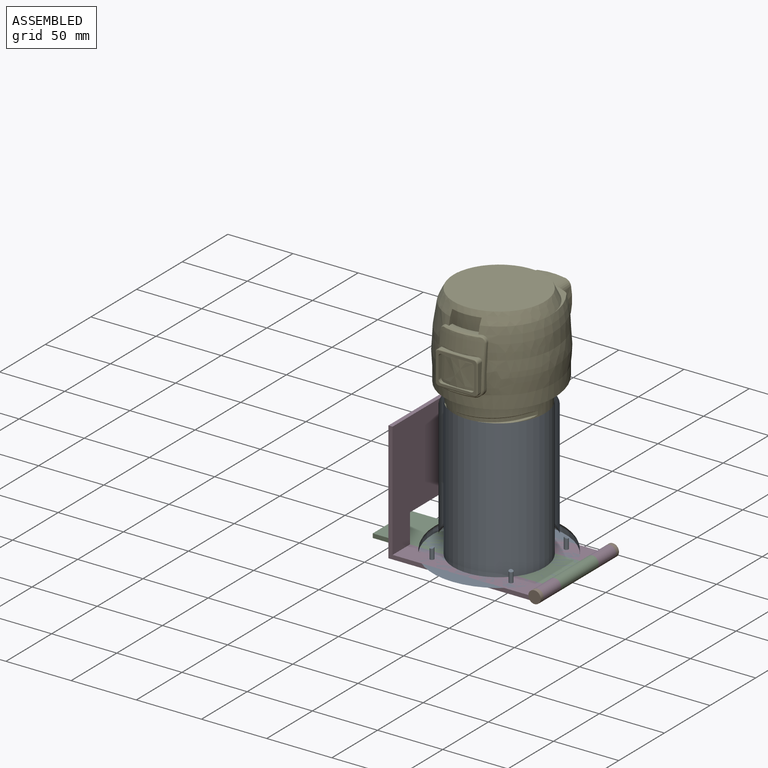
[diagram: assembled view]
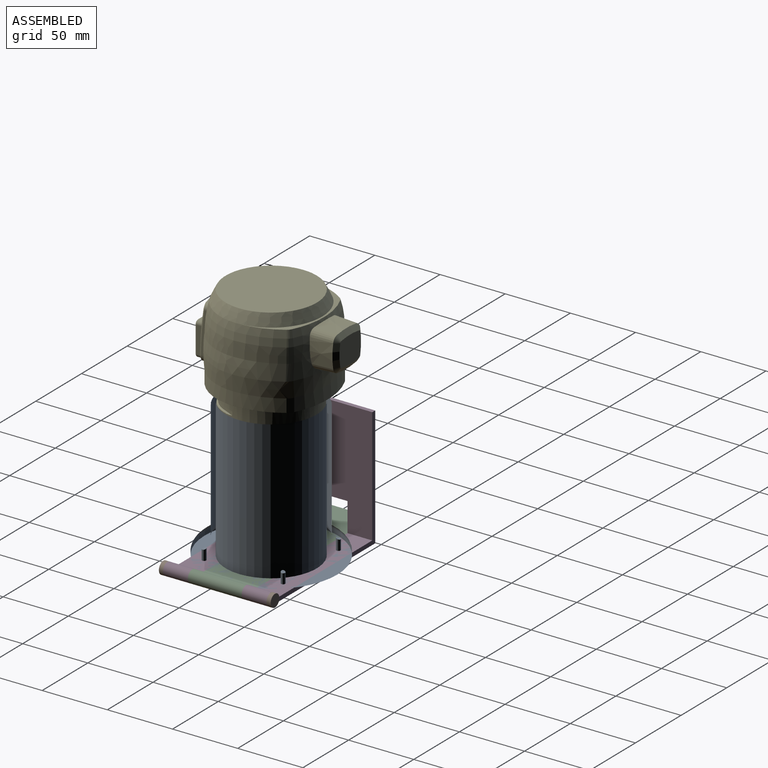
[diagram: assembled view, second angle]
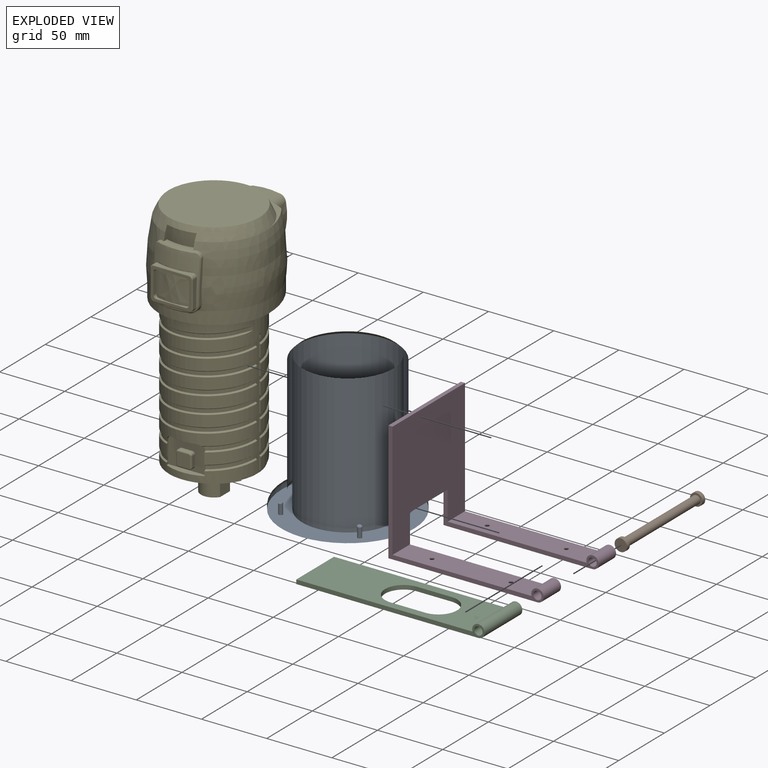
[diagram: exploded view]
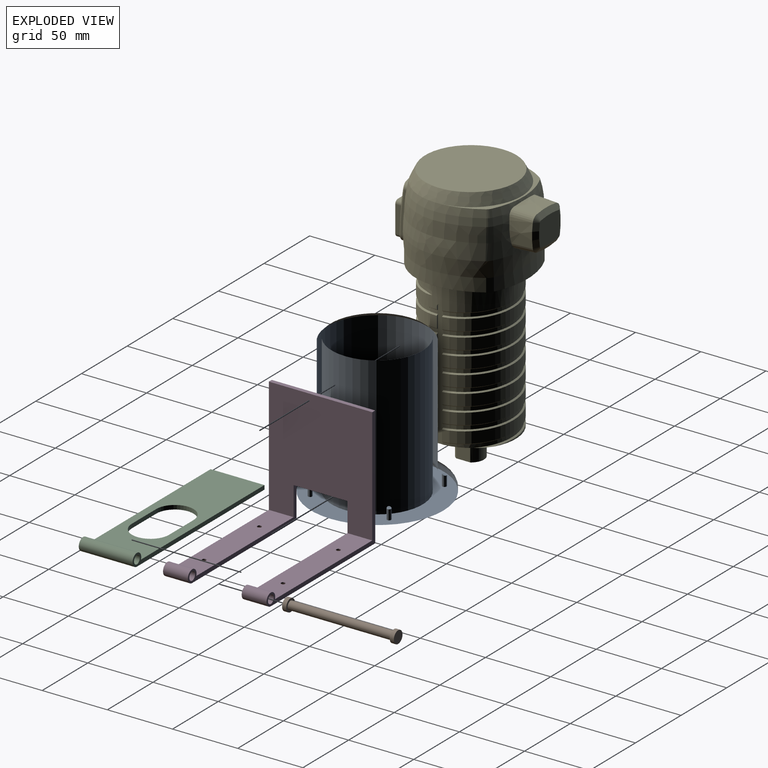
[diagram: exploded view, second angle]
ASSEMBLY  parts=5 mates=3
PART A: 17 faces, bbox 110x110x107.7 mm
  f0: torus R=44.45mm, axis (0,0,-1), area 8.3mm2, adj f1
  f1: cylinder r=1.59mm len=8.47mm, axis (0,0,-1), area 79.1mm2, adj f0,f2
  f2: plane 101.6x101.6mm, normal (0,0,1), area 4243.7mm2, adj f1,f3,f4,f5,f6,f7
  f3: cylinder r=1.59mm len=8.47mm, axis (0,0,-1), area 79.1mm2, adj f2,f8
  f4: cylinder r=1.59mm len=8.47mm, axis (0,0,-1), area 79.1mm2, adj f2,f9
  f5: cylinder r=1.59mm len=8.47mm, axis (0,0,-1), area 79.1mm2, adj f2,f10
  f6: cylinder r=34.92mm len=106.68mm, axis (0,0,-1), area 23409.9mm2, adj f2,f11
  f7: cylinder r=50.8mm len=101.6mm, axis (0,0,-1), area 810.7mm2, adj f2,f12
  f8: torus R=44.45mm, axis (0,0,-1), area 8.3mm2, adj f3
  f9: torus R=44.45mm, axis (0,0,-1), area 8.3mm2, adj f4
  f10: torus R=44.45mm, axis (0,0,-1), area 8.3mm2, adj f5
  f11: plane 71.12x71.12mm, normal (0,0,-1), area 140.6mm2, adj f6,f13
  f12: torus R=45.72mm, axis (0,0,-1), area 2454.4mm2, adj f7,f14
  f13: cone r=35.56mm half-angle=45deg, axis (0,0,-1), area 831.2mm2, adj f11,f15
  f14: plane 91.44x91.44mm, normal (0,0,-1), area 359.8mm2, adj f12,f16
  f15: cylinder r=38.1mm len=90.17mm, axis (0,0,-1), area 21585.7mm2, adj f13,f16
  f16: torus R=44.45mm, axis (0,0,-1), area 2532.4mm2, adj f14,f15
PART B: 7 faces, bbox 9.5x85.7x9.5 mm
  f0: cylinder r=3.17mm len=79.38mm, axis (0,1,0), area 1583.5mm2, adj f3,f6
  f1: cylinder r=4.76mm len=9.53mm, axis (0,1,0), area 95mm2, adj f2,f3
  f2: plane 9.53x9.53mm, normal (0,-1,0), area 71.3mm2, adj f1
  f3: plane 9.53x9.53mm, normal (0,1,0), area 39.6mm2, adj f0,f1
  f4: cylinder r=4.76mm len=9.53mm, axis (0,-1,0), area 95mm2, adj f5,f6
  f5: plane 9.53x9.53mm, normal (0,1,0), area 71.3mm2, adj f4
  f6: plane 9.53x9.53mm, normal (0,-1,0), area 39.6mm2, adj f0,f4
PART C: 11 faces, bbox 144.5x41.3x9.5 mm
  f0: plane 139.7x41.28mm, normal (0,0,-1), area 4362.9mm2, adj f1,f4,f5,f6,f7,f8,f9,f10
  f1: cylinder r=4.76mm len=41.28mm, axis (0,1,0), area 993.1mm2, adj f0,f2,f5,f6
  f2: plane 135.21x41.28mm, normal (0,0,1), area 4177.6mm2, adj f1,f4,f5,f6,f7,f8,f9,f10
  f3: cylinder r=3.17mm len=41.28mm, axis (0,1,0), area 823.4mm2, adj f5,f6
  f4: plane 41.28x3.18mm, normal (-1,0,0), area 131mm2, adj f0,f2,f5,f6
  f5: plane 144.46x9.53mm, normal (0,-1,0), area 472.7mm2, adj f0,f1,f2,f3,f4
  f6: plane 144.46x9.53mm, normal (0,1,0), area 472.7mm2, adj f0,f1,f2,f3,f4
  f7: cylinder r=14.29mm len=28.58mm, axis (0,0,1), area 142.5mm2, adj f0,f2,f8,f9
  f8: plane 26.66x3.18mm, normal (0,-1,0), area 84.7mm2, adj f0,f2,f7,f10
  f9: plane 26.66x3.18mm, normal (0,1,0), area 84.7mm2, adj f0,f2,f7,f10
  f10: cylinder r=14.29mm len=28.58mm, axis (0,0,1), area 142.5mm2, adj f0,f2,f8,f9
PART D: 24 faces, bbox 119.1x79.4x92.1 mm
  f0: plane 114.3x19.05mm, normal (0,0,-1), area 2070.4mm2, adj f1,f4,f12,f14,f20,f21
  f1: cylinder r=4.76mm len=19.05mm, axis (0,1,0), area 458.4mm2, adj f0,f2,f12,f14
  f2: plane 106.64x19.05mm, normal (0,0,1), area 2015.6mm2, adj f1,f8,f12,f14,f18,f19
  f3: cylinder r=3.17mm len=19.05mm, axis (0,1,0), area 380mm2, adj f12,f14
  f4: plane 92.08x79.38mm, normal (-1,0,0), area 6260.1mm2, adj f0,f5,f9,f11,f12,f13,f14,f15
  f5: plane 114.3x19.05mm, normal (0,0,-1), area 2070.4mm2, adj f4,f6,f11,f13,f22,f23
  f6: cylinder r=4.76mm len=19.05mm, axis (0,1,0), area 458.4mm2, adj f5,f7,f11,f13
  f7: plane 106.64x19.05mm, normal (0,0,1), area 2015.6mm2, adj f6,f8,f11,f13,f16,f17
  f8: plane 88.9x79.38mm, normal (1,0,0), area 6139.1mm2, adj f2,f7,f9,f11,f12,f13,f14,f15
  f9: plane 79.38x3.18mm, normal (0,0,1), area 252mm2, adj f4,f8,f11,f12
  f10: cylinder r=3.17mm len=19.05mm, axis (0,1,0), area 380mm2, adj f11,f13
  f11: plane 119.06x92.08mm, normal (0,-1,0), area 674.4mm2, adj f4,f5,f6,f7,f8,f9,f10
  f12: plane 119.06x92.08mm, normal (0,1,0), area 674.4mm2, adj f0,f1,f2,f3,f4,f8,f9
  f13: plane 119.06x25.4mm, normal (0,1,0), area 462.7mm2, adj f4,f5,f6,f7,f8,f10,f15
  f14: plane 119.06x25.4mm, normal (0,-1,0), area 462.7mm2, adj f0,f1,f2,f3,f4,f8,f15
  f15: plane 41.28x3.18mm, normal (0,0,-1), area 131mm2, adj f4,f8,f13,f14
  f16: cylinder r=1.59mm len=3.18mm, axis (0,0,-1), area 6.3mm2, adj f7,f23
  f17: cylinder r=1.59mm len=3.18mm, axis (0,0,-1), area 6.3mm2, adj f7,f22
  f18: cylinder r=1.59mm len=3.18mm, axis (0,0,-1), area 6.3mm2, adj f2,f21
  f19: cylinder r=1.59mm len=3.18mm, axis (0,0,-1), area 6.3mm2, adj f2,f20
  f20: cone r=1.59mm half-angle=45deg, axis (0,0,-1), area 64.5mm2, adj f0,f19
  f21: cone r=1.59mm half-angle=45deg, axis (0,0,-1), area 64.5mm2, adj f0,f18
  f22: cone r=1.59mm half-angle=45deg, axis (0,0,-1), area 64.5mm2, adj f5,f17
  f23: cone r=1.59mm half-angle=45deg, axis (0,0,-1), area 64.5mm2, adj f5,f16
PART E: 205 faces, bbox 86.1x107.7x199.2 mm
  f0: plane 28.8x21.4mm, normal (0,-1,0), area 466.4mm2, adj f1,f11,f12,f13,f14,f15,f16,f17
  f1: cylinder r=1.98mm len=2.81mm, axis (0,1,0), area 8.8mm2, adj f0,f2,f11,f17
  f2: torus R=0.79mm, axis (0,-1,0), area 4.6mm2, adj f1,f3,f9,f10
  f3: plane 9.62x9.62mm, normal (0,-1,0), area 92mm2, adj f2,f4,f5,f6,f7,f8,f9,f10
  f4: torus R=0.79mm, axis (0,-1,0), area 4.6mm2, adj f3,f5,f10,f16
  f5: cylinder r=1.19mm len=8.03mm, axis (0,0,1), area 15mm2, adj f3,f4,f6,f15
  f6: torus R=0.79mm, axis (0,-1,0), area 4.6mm2, adj f3,f5,f7,f14
  f7: cylinder r=1.19mm len=8.03mm, axis (1,0,0), area 15mm2, adj f3,f6,f8,f13
  f8: torus R=0.79mm, axis (0,-1,0), area 4.6mm2, adj f3,f7,f9,f12
  f9: cylinder r=1.19mm len=8.03mm, axis (0,0,-1), area 15mm2, adj f2,f3,f8,f11
  f10: cylinder r=1.19mm len=8.03mm, axis (-1,0,0), area 15mm2, adj f2,f3,f4,f17
  f11: plane 8.03x2.81mm, normal (1,0,0), area 22.6mm2, adj f0,f1,f9,f12
  f12: cylinder r=1.98mm len=2.81mm, axis (0,1,0), area 8.8mm2, adj f0,f8,f11,f13
  f13: plane 8.03x2.81mm, normal (0,0,1), area 22.6mm2, adj f0,f7,f12,f14
  f14: cylinder r=1.98mm len=2.81mm, axis (0,1,0), area 8.8mm2, adj f0,f6,f13,f15
  f15: plane 8.03x2.81mm, normal (-1,0,0), area 22.6mm2, adj f0,f5,f14,f16
  f16: cylinder r=1.98mm len=2.81mm, axis (0,1,0), area 8.8mm2, adj f0,f4,f15,f17
  f17: plane 8.03x2.81mm, normal (0,0,-1), area 22.6mm2, adj f0,f1,f10,f16
  f18: cylinder r=4.66mm len=4.66mm, axis (0,1,0), area 0.7mm2, adj f0,f19,f173,f177
  f19: plane 29x21.6mm, normal (0,-1,0), area 9.7mm2, adj f18,f20,f168,f169,f170,f171,f172,f173
  f20: plane 29x5mm, normal (0,0,1), area 114.7mm2, adj f19,f21,f168,f172
  f21: cylinder r=34.5mm len=68.88mm, axis (0,0,-1), area 692.3mm2, adj f20,f22,f150,f151,f152,f165,f166,f167
  f22: plane 95.2x1.24mm, normal (0,1,0), area 88mm2, adj f21,f23,f115,f116,f117,f118,f119,f120
  f23: cylinder r=34.5mm len=69mm, axis (0,0,-1), area 3893mm2, adj f22,f24,f58,f59,f60,f61,f62,f63
  f24: cylinder r=2mm len=4mm, axis (-1,0,0), area 2mm2, adj f23,f25,f26,f27,f56,f57,f58,f165
  f25: bspline ~66.65x66.64mm, area 521.1mm2, adj f24,f26,f58,f60,f62,f63
  f26: bspline ~69.8x43.83mm, area 145.2mm2, adj f24,f25,f27,f63
  f27: cylinder r=34.5mm len=68.88mm, axis (0,0,-1), area 904mm2, adj f24,f26,f28,f56,f63
  f28: bspline ~69.8x43.83mm, area 145.1mm2, adj f27,f29,f56,f63
  f29: bspline ~67.47x42.37mm, area 272.1mm2, adj f28,f30,f56,f63
  f30: bspline ~69.8x43.83mm, area 145.1mm2, adj f29,f31,f56,f63
  f31: cylinder r=34.5mm len=68.88mm, axis (0,0,-1), area 904mm2, adj f30,f32,f56,f63
  f32: bspline ~69.8x43.83mm, area 145.1mm2, adj f31,f33,f56,f63
  f33: bspline ~67.47x42.37mm, area 272.1mm2, adj f32,f34,f56,f63
  f34: bspline ~69.8x43.83mm, area 145.1mm2, adj f33,f35,f56,f63
  f35: cylinder r=34.5mm len=68.88mm, axis (0,0,-1), area 904mm2, adj f34,f36,f56,f63
  f36: bspline ~69.8x43.83mm, area 145.1mm2, adj f35,f37,f56,f63
  f37: bspline ~67.47x42.37mm, area 272.1mm2, adj f36,f38,f56,f63
  f38: bspline ~69.8x43.83mm, area 145.1mm2, adj f37,f39,f56,f63
  f39: cylinder r=34.5mm len=68.88mm, axis (0,0,-1), area 904mm2, adj f38,f40,f56,f63
  f40: bspline ~69.8x43.83mm, area 145.1mm2, adj f39,f41,f56,f63
  f41: bspline ~67.47x42.37mm, area 272.1mm2, adj f40,f42,f56,f63
  f42: bspline ~69.8x43.83mm, area 145.1mm2, adj f41,f43,f56,f63
  f43: cylinder r=34.5mm len=68.88mm, axis (0,0,-1), area 904mm2, adj f42,f44,f56,f63
  f44: bspline ~69.8x43.83mm, area 145.1mm2, adj f43,f45,f56,f63
  f45: bspline ~67.47x42.37mm, area 272.1mm2, adj f44,f46,f56,f63
  f46: bspline ~69.8x43.83mm, area 145.1mm2, adj f45,f47,f56,f63
  f47: cylinder r=34.5mm len=68.88mm, axis (0,0,-1), area 904mm2, adj f46,f48,f56,f63
  f48: bspline ~69.8x43.83mm, area 145.1mm2, adj f47,f49,f56,f63
  f49: bspline ~67.47x42.37mm, area 272.1mm2, adj f48,f50,f56,f63
  f50: bspline ~69.8x43.83mm, area 145.1mm2, adj f49,f51,f56,f63
  f51: cylinder r=34.5mm len=68.88mm, axis (0,0,-1), area 904mm2, adj f50,f52,f56,f63
  f52: bspline ~69.8x43.83mm, area 145.1mm2, adj f51,f53,f56,f63
  f53: bspline ~67.47x42.37mm, area 260mm2, adj f52,f54,f56,f63,f152
  f54: bspline ~63.16x43.83mm, area 107mm2, adj f53,f55,f56,f152
  f55: cylinder r=34.5mm len=51.63mm, axis (0,0,-1), area 147.7mm2, adj f54,f56,f152
  f56: plane 95.2x1.24mm, normal (0,-1,0), area 89.9mm2, adj f24,f27,f28,f29,f30,f31,f32,f33
  f57: plane 97.2x4mm, normal (-1,0,0), area 387.1mm2, adj f24,f56,f152,f165
  f58: bspline ~66.17x37.91mm, area 127.2mm2, adj f23,f24,f25,f59
  f59: plane 8.49x3.73mm, normal (0.53,-0.25,0.81), area 8.3mm2, adj f23,f58,f60
  f60: plane 8.01x3.73mm, normal (0.91,-0.42,0), area 23.8mm2, adj f23,f25,f59,f61
  f61: plane 8.49x3.73mm, normal (0.53,-0.25,-0.81), area 8.3mm2, adj f23,f60,f62
  f62: bspline ~69.8x69.8mm, area 277.7mm2, adj f23,f25,f61,f63
  f63: plane 95.2x1.24mm, normal (0,-1,0), area 87.7mm2, adj f23,f25,f26,f27,f28,f29,f30,f31
  f64: plane 85.5x84mm, normal (0,0,-1), area 2078mm2, adj f23,f65,f110,f111,f112,f113,f114
  f65: cylinder r=62.68mm len=55.4mm, axis (0,0,-1), area 573.8mm2, adj f64,f66,f110,f114
  f66: bspline ~85.95x84.41mm, area 5487.4mm2, adj f65,f67,f100,f101,f102,f103,f104,f105
  f67: cone r=5.16mm half-angle=3deg, axis (0,-1,0), area 104mm2, adj f66,f68,f100,f109
  f68: cone r=5.3mm half-angle=55deg, axis (0,-1,0), area 19.2mm2, adj f67,f69,f98,f99
  f69: plane 23.5x20.5mm, normal (0,1,0), area 450.1mm2, adj f68,f70,f94,f95,f96,f97,f98,f99
  f70: cone r=1.41mm half-angle=55deg, axis (0,-1,0), area 19.2mm2, adj f69,f71,f94,f99
  f71: cone r=5.16mm half-angle=3deg, axis (0,-1,0), area 119.8mm2, adj f70,f72,f93,f109
  f72: bspline ~83.46x83.27mm, area 3563.1mm2, adj f71,f73,f74,f77,f78,f89,f90,f91
  f73: plane 78.34x40.71mm, normal (0,0,1), area 254.3mm2, adj f72,f74
  f74: bspline ~78.75x78.25mm, area 2091.1mm2, adj f72,f73,f75,f76,f77,f92
  f75: cylinder r=37mm len=22.6mm, axis (0,0,1), area 234.3mm2, adj f74,f77,f91,f92
  f76: plane 70x70mm, normal (0,0,1), area 3848.4mm2, adj f74
  f77: plane 10.26x3.77mm, normal (1,0,0), area 22.3mm2, adj f72,f74,f75,f91
  f78: cylinder r=4.37mm len=4.37mm, axis (0,-1,0), area 11.4mm2, adj f72,f79,f91,f104
  f79: bspline ~4.37x4.37mm, area 7.1mm2, adj f78,f80,f87,f88
  f80: revolved ~40.37x36.23mm, area 1397.8mm2, adj f79,f81,f82,f83,f84,f86,f87,f88
  f81: bspline ~4.37x4.37mm, area 7.1mm2, adj f80,f82,f88,f90
  f82: bspline ~31.44x3.58mm, area 34.5mm2, adj f80,f81,f83,f107
  f83: bspline ~6.36x6.35mm, area 11.6mm2, adj f80,f82,f84,f106
  f84: cone r=45.92mm half-angle=49.6deg, axis (0,0,1), area 31.8mm2, adj f80,f83,f85,f86
  f85: plane 22.6x4.42mm, normal (0,0,-1), area 65.6mm2, adj f84,f105,f106,f112
  f86: bspline ~6.36x6.35mm, area 11.6mm2, adj f80,f84,f87,f105
  f87: bspline ~31.44x3.58mm, area 34.5mm2, adj f79,f80,f86,f104
  f88: cone r=41.95mm half-angle=54.5deg, axis (0,0,-1), area 34.8mm2, adj f79,f80,f81,f91
  f89: cone r=5.16mm half-angle=3deg, axis (0,-1,0), area 120mm2, adj f72,f93,f95,f102
  f90: cylinder r=4.37mm len=4.37mm, axis (0,-1,0), area 11.4mm2, adj f72,f81,f91,f107
  f91: plane 26.57x6.72mm, normal (0,0,1), area 119.3mm2, adj f72,f75,f77,f78,f88,f90,f92
  f92: plane 10.26x3.77mm, normal (-1,0,0), area 22.3mm2, adj f72,f74,f75,f91
  f93: cone r=61.75mm half-angle=3deg, axis (0,-1,0), area 365mm2, adj f71,f72,f89,f94
  f94: cone r=61.9mm half-angle=55deg, axis (0,-1,0), area 96.5mm2, adj f69,f70,f93,f95
  f95: cone r=5.3mm half-angle=55deg, axis (0,-1,0), area 19.2mm2, adj f69,f89,f94,f96
  f96: cone r=42.04mm half-angle=55deg, axis (0,-1,0), area 83.2mm2, adj f69,f95,f97,f102
  f97: cone r=1.41mm half-angle=55deg, axis (0,-1,0), area 19.2mm2, adj f69,f96,f98,f101
  f98: cone r=58mm half-angle=55deg, axis (0,-1,0), area 96.5mm2, adj f68,f69,f97,f100
  f99: cone r=42.04mm half-angle=55deg, axis (0,-1,0), area 83.2mm2, adj f68,f69,f70,f109
  f100: cone r=61.75mm half-angle=3deg, axis (0,-1,0), area 305.1mm2, adj f66,f67,f98,f101
  f101: cone r=5.16mm half-angle=3deg, axis (0,-1,0), area 104.2mm2, adj f66,f97,f100,f102
  f102: cone r=45.79mm half-angle=3deg, axis (0,-1,0), area 309.2mm2, adj f66,f72,f89,f96,f101,f103
  f103: bspline ~79.46x25.78mm, area 532.7mm2, adj f66,f72,f102,f104
  f104: plane 31.34x4.47mm, normal (-1,0,0), area 73.9mm2, adj f66,f72,f78,f87,f103,f105
  f105: cylinder r=6.35mm len=6.35mm, axis (0,-1,0), area 32.4mm2, adj f66,f85,f86,f104,f112
  f106: cylinder r=6.35mm len=6.35mm, axis (0,-1,0), area 32.4mm2, adj f66,f83,f85,f107,f112
  f107: plane 31.34x4.47mm, normal (1,0,0), area 73.9mm2, adj f66,f72,f82,f90,f106,f108
  f108: bspline ~79.5x25.91mm, area 533.5mm2, adj f66,f72,f107,f109
  f109: cone r=45.79mm half-angle=3deg, axis (0,-1,0), area 308.5mm2, adj f66,f67,f71,f72,f99,f108
  f110: cylinder r=10mm len=10mm, axis (0,0,-1), area 51.1mm2, adj f64,f65,f66,f111
  f111: cylinder r=59.57mm len=33.74mm, axis (0,0,-1), area 358.7mm2, adj f64,f66,f110,f112
  f112: cylinder r=42mm len=84mm, axis (0,0,-1), area 1281.4mm2, adj f64,f66,f85,f105,f106,f111,f113
  f113: cylinder r=59.57mm len=33.74mm, axis (0,0,-1), area 358.7mm2, adj f64,f66,f112,f114
  f114: cylinder r=10mm len=10mm, axis (0,0,-1), area 51.1mm2, adj f64,f65,f66,f113
  f115: cylinder r=2mm len=4mm, axis (1,0,0), area 7.8mm2, adj f22,f23,f63,f116
  f116: plane 97.2x4mm, normal (1,0,0), area 387.1mm2, adj f22,f63,f115,f152
  f117: bspline ~22.73x4.14mm, area 10.5mm2, adj f22,f150,f151,f152
  f118: bspline ~38.86x19.64mm, area 95.5mm2, adj f22,f119,f167,f172
  f119: bspline ~43.3x31.99mm, area 51.3mm2, adj f22,f118,f120,f172
  f120: cylinder r=34.5mm len=29.31mm, axis (0,0,-1), area 322.4mm2, adj f22,f119,f121,f172
  f121: bspline ~43.3x31.99mm, area 51.4mm2, adj f22,f120,f122,f171,f172
  f122: bspline ~41.85x30.83mm, area 97.3mm2, adj f22,f121,f123,f171
  f123: bspline ~43.3x31.99mm, area 53.7mm2, adj f22,f122,f124,f171
  f124: cylinder r=34.5mm len=68.88mm, axis (0,0,-1), area 864mm2, adj f22,f123,f125,f131,f165,f169,f170,f171
  f125: bspline ~36.33x26.27mm, area 51.9mm2, adj f124,f126,f165,f169
  f126: bspline ~35.12x25.1mm, area 95.7mm2, adj f125,f127,f165,f168,f169
  f127: bspline ~36.33x26.27mm, area 51.3mm2, adj f126,f128,f165,f168
  f128: cylinder r=34.5mm len=29.31mm, axis (0,0,-1), area 322.4mm2, adj f127,f129,f165,f168
  f129: bspline ~36.33x26.27mm, area 51.3mm2, adj f128,f130,f165,f168
  f130: bspline ~35.12x25.1mm, area 95.5mm2, adj f129,f165,f166,f168
  f131: bspline ~69.8x43.83mm, area 145.1mm2, adj f22,f124,f132,f165
  f132: bspline ~67.47x42.37mm, area 272.1mm2, adj f22,f131,f133,f165
  f133: bspline ~69.8x43.83mm, area 145.1mm2, adj f22,f132,f134,f165
  f134: cylinder r=34.5mm len=68.88mm, axis (0,0,-1), area 904mm2, adj f22,f133,f135,f165
  f135: bspline ~69.8x43.83mm, area 145.1mm2, adj f22,f134,f136,f165
  f136: bspline ~67.47x42.37mm, area 272.1mm2, adj f22,f135,f137,f165
  f137: bspline ~69.8x43.83mm, area 145.1mm2, adj f22,f136,f138,f165
  f138: cylinder r=34.5mm len=68.88mm, axis (0,0,-1), area 904mm2, adj f22,f137,f139,f165
  f139: bspline ~69.8x43.83mm, area 145.1mm2, adj f22,f138,f140,f165
  f140: bspline ~67.47x42.37mm, area 272.1mm2, adj f22,f139,f141,f165
  f141: bspline ~69.8x43.83mm, area 145.1mm2, adj f22,f140,f142,f165
  f142: cylinder r=34.5mm len=68.88mm, axis (0,0,-1), area 904mm2, adj f22,f141,f143,f165
  f143: bspline ~69.8x43.83mm, area 145.1mm2, adj f22,f142,f144,f165
  f144: bspline ~67.47x42.37mm, area 272.1mm2, adj f22,f143,f145,f165
  f145: bspline ~69.8x43.83mm, area 145.1mm2, adj f22,f144,f146,f165
  f146: cylinder r=34.5mm len=68.88mm, axis (0,0,-1), area 904mm2, adj f22,f145,f147,f165
  f147: bspline ~69.8x43.83mm, area 145.1mm2, adj f22,f146,f148,f165
  f148: bspline ~67.47x42.37mm, area 272.1mm2, adj f22,f147,f149,f165
  f149: bspline ~69.8x43.83mm, area 145.1mm2, adj f22,f23,f148,f165
  f150: bspline ~23.51x4.67mm, area 18.1mm2, adj f21,f22,f117,f151
  f151: plane 1.27x1.04mm, normal (0.42,0.91,0), area 1mm2, adj f21,f117,f150,f152
  f152: plane 69.1x67.84mm, normal (0,0,-1), area 2350.2mm2, adj f21,f22,f53,f54,f55,f56,f57,f63
  f153: cylinder r=20.6mm len=41.2mm, axis (0,0,1), area 349.5mm2, adj f152,f154
  f154: plane 41.2x41.2mm, normal (0,0,-1), area 1156.5mm2, adj f153,f155
  f155: cylinder r=7.5mm len=15mm, axis (0,0,1), area 176.7mm2, adj f154,f156
  f156: plane 20x20mm, normal (0,0,1), area 137.4mm2, adj f155,f157
  f157: cylinder r=10mm len=20mm, axis (0,0,1), area 640.3mm2, adj f156,f158,f159,f160,f161,f162,f163,f164
  f158: plane 6.82x0.6mm, normal (0,0,-1), area 2.7mm2, adj f157,f159
  f159: cylinder r=1mm len=10.85mm, axis (0,-1,0), area 13.9mm2, adj f157,f158,f160
  f160: plane 11x10.85mm, normal (-1,0,0), area 119.4mm2, adj f157,f159,f161
  f161: plane 20x16.8mm, normal (0,0,-1), area 290.6mm2, adj f157,f160,f164
  f162: plane 6.82x0.6mm, normal (0,0,-1), area 2.7mm2, adj f157,f163
  f163: cylinder r=1mm len=10.85mm, axis (0,1,0), area 13.9mm2, adj f157,f162,f164
  f164: plane 11x10.85mm, normal (1,0,0), area 119.4mm2, adj f157,f161,f163
  f165: plane 95.2x1.24mm, normal (0,1,0), area 89.9mm2, adj f21,f23,f24,f57,f124,f125,f126,f127
  f166: bspline ~36.33x26.27mm, area 51.3mm2, adj f21,f130,f165,f168
  f167: bspline ~43.3x31.99mm, area 51.3mm2, adj f21,f22,f118,f172
  f168: plane 16.85x1.81mm, normal (1,0,0), area 23.7mm2, adj f19,f20,f21,f126,f127,f128,f129,f130
  f169: cylinder r=4.76mm len=4.76mm, axis (0,-1,0), area 16.7mm2, adj f19,f124,f125,f126,f168,f170
  f170: plane 19.48x5mm, normal (0,0,-1), area 88.3mm2, adj f19,f124,f169,f171
  f171: cylinder r=4.76mm len=4.76mm, axis (0,-1,0), area 14.1mm2, adj f19,f121,f122,f123,f124,f170,f172
  f172: plane 16.85x1.81mm, normal (-1,0,0), area 25.8mm2, adj f19,f20,f21,f118,f119,f120,f121,f167
  f173: plane 19.48x0.1mm, normal (0,0,1), area 1.9mm2, adj f0,f18,f19,f174
  f174: cylinder r=4.66mm len=4.66mm, axis (0,1,0), area 0.7mm2, adj f0,f19,f173,f175
  f175: plane 16.74x0.1mm, normal (1,0,0), area 1.7mm2, adj f0,f19,f174,f176
  f176: plane 28.8x0.1mm, normal (0,0,-1), area 2.9mm2, adj f0,f19,f175,f177
  f177: plane 16.74x0.1mm, normal (-1,0,0), area 1.7mm2, adj f0,f18,f19,f176
  f178: revolved ~33.18x25.8mm, area 849.5mm2, adj f179,f198,f199,f200,f201,f202,f203,f204
  f179: plane 20.44x4.43mm, normal (-1,0,0), area 72.3mm2, adj f178,f180,f198,f204
  f180: cylinder r=0.79mm len=20.24mm, axis (0,0,-1), area 25.2mm2, adj f179,f181,f187,f197
  f181: torus R=1.98mm, axis (0,-1,0), area 4.9mm2, adj f180,f182,f187,f198
  f182: cylinder r=0.79mm len=26.94mm, axis (-1,0,0), area 33.6mm2, adj f181,f183,f187,f199
  f183: torus R=1.98mm, axis (0,-1,0), area 4.9mm2, adj f182,f184,f187,f200
  f184: cylinder r=0.79mm len=20.24mm, axis (0,0,1), area 25.2mm2, adj f183,f185,f187,f201
  f185: torus R=1.98mm, axis (0,-1,0), area 4.9mm2, adj f184,f186,f187,f202
  f186: cylinder r=0.79mm len=26.94mm, axis (1,0,0), area 33.6mm2, adj f185,f187,f197,f203
  f187: plane 30.91x24.21mm, normal (0,-1,0), area 187.6mm2, adj f180,f181,f182,f183,f184,f185,f186,f188
  f188: cylinder r=2.38mm len=3.14mm, axis (0,1,0), area 10.5mm2, adj f187,f189,f190,f196
  f189: revolved ~27.76x20.6mm, area 564.4mm2, adj f188,f190,f191,f192,f193,f194,f195,f196
  f190: plane 22.54x2.46mm, normal (0,0,1), area 34.2mm2, adj f187,f188,f189,f191
  f191: cylinder r=2.38mm len=3.14mm, axis (0,1,0), area 10.5mm2, adj f187,f189,f190,f192
  f192: plane 15.94x4.01mm, normal (-1,0,0), area 54.3mm2, adj f187,f189,f191,f193
  f193: cylinder r=2.38mm len=3.91mm, axis (0,1,0), area 13.8mm2, adj f187,f189,f192,f194
  f194: plane 22.54x3.44mm, normal (0,0,-1), area 56mm2, adj f187,f189,f193,f195
  f195: cylinder r=2.38mm len=3.91mm, axis (0,1,0), area 13.8mm2, adj f187,f189,f194,f196
  f196: plane 15.95x4.02mm, normal (1,0,0), area 54.3mm2, adj f187,f188,f189,f195
  f197: torus R=1.98mm, axis (0,-1,0), area 4.9mm2, adj f180,f186,f187,f204
  f198: cylinder r=2.78mm len=4.23mm, axis (0,-1,0), area 17mm2, adj f178,f179,f181,f199
  f199: plane 26.94x3.55mm, normal (0,0,1), area 58.1mm2, adj f178,f182,f198,f200
  f200: cylinder r=2.78mm len=4.23mm, axis (0,-1,0), area 17mm2, adj f178,f183,f199,f201
  f201: plane 20.44x4.43mm, normal (1,0,0), area 72.3mm2, adj f178,f184,f200,f202
  f202: cylinder r=2.78mm len=3.23mm, axis (0,-1,0), area 12mm2, adj f178,f185,f201,f203
  f203: plane 26.94x2.29mm, normal (0,0,-1), area 25.3mm2, adj f178,f186,f202,f204
  f204: cylinder r=2.78mm len=3.23mm, axis (0,-1,0), area 12mm2, adj f178,f179,f197,f203
PLACE A t=(-14.59,-24.52,47.19)mm
PLACE B t=(42.56,15.18,-4.57)mm
PLACE C t=(-52.69,-3.87,-7.74)mm
PLACE D t=(-14.59,-45.14,-7.74)mm
PLACE E t=(-14.59,-24.52,0)mm
MATE slider A.f0 <-> E.f21  axis (0,0,-1) through (-14.59,-24.52,100.53)mm
MATE fastened B.f0 <-> D.f1  axis (0,1,0) through (42.56,-64.19,-4.57)mm
MATE fastened C.f1 <-> D.f1  axis (0,1,0) through (42.56,-3.87,-4.57)mm
